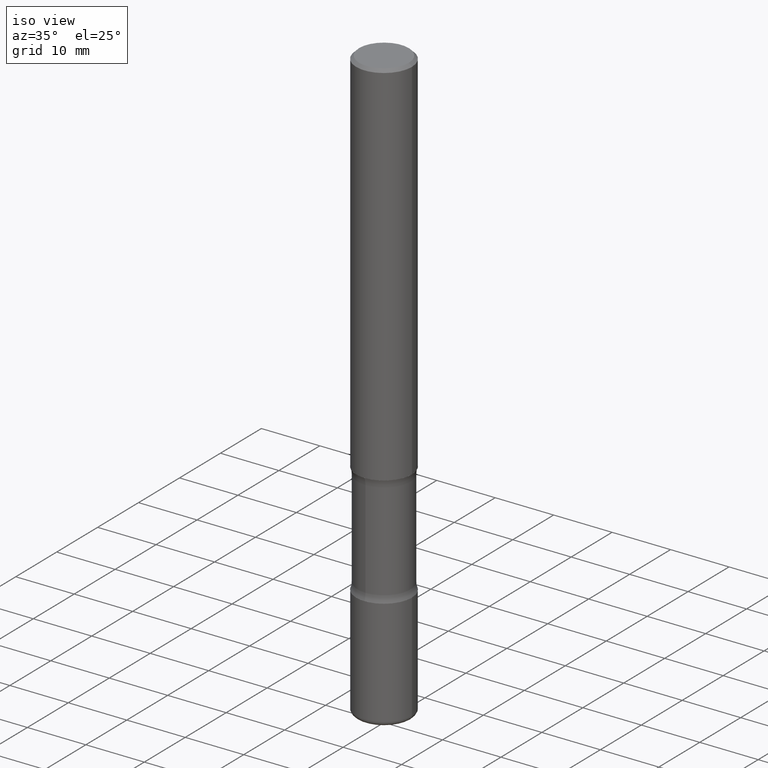
[diagram: clean part render]
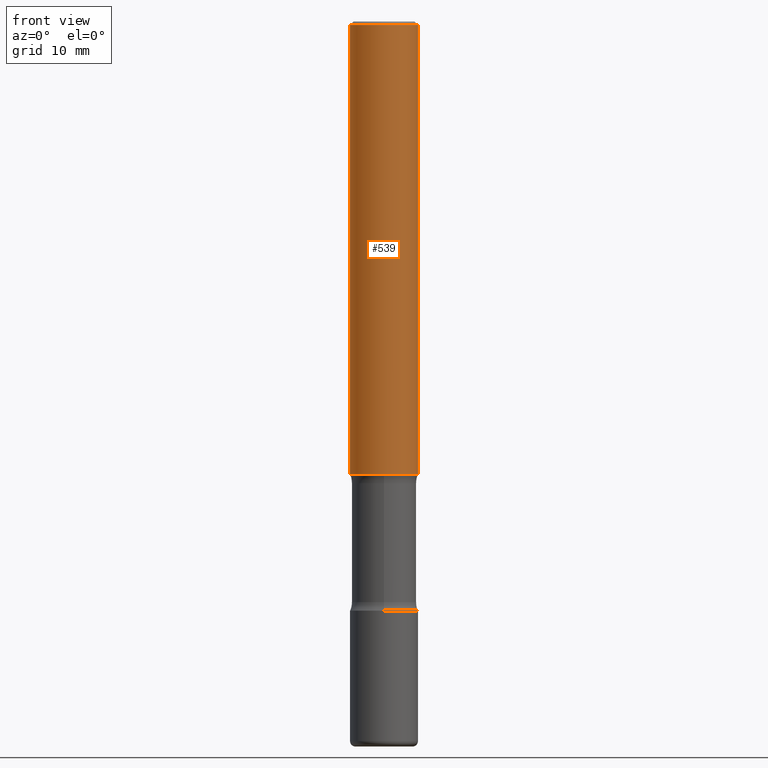
[diagram: tour spotlight — one face highlighted and labeled with its STEP entity id]
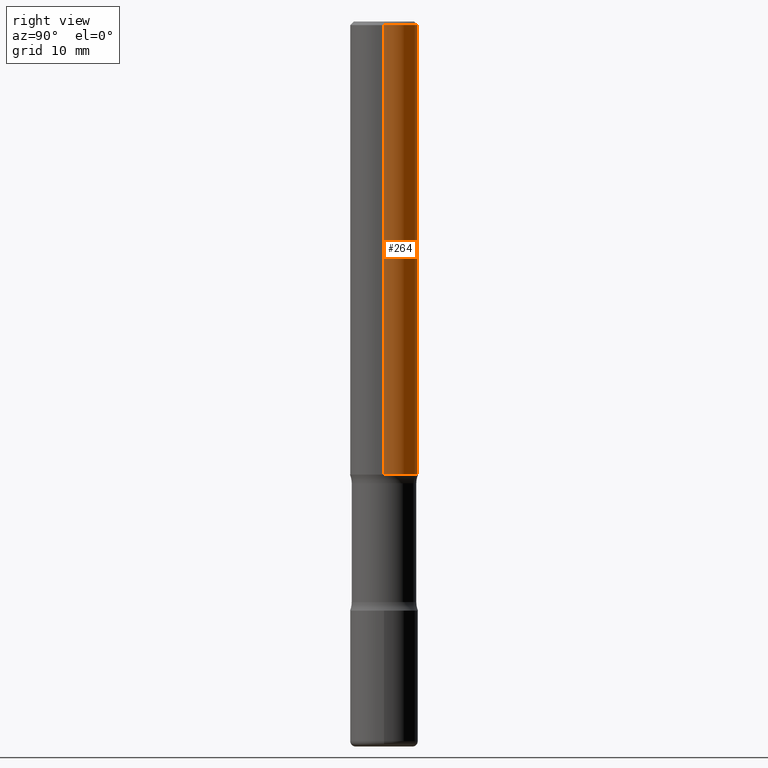
[diagram: tour spotlight — one face highlighted and labeled with its STEP entity id]
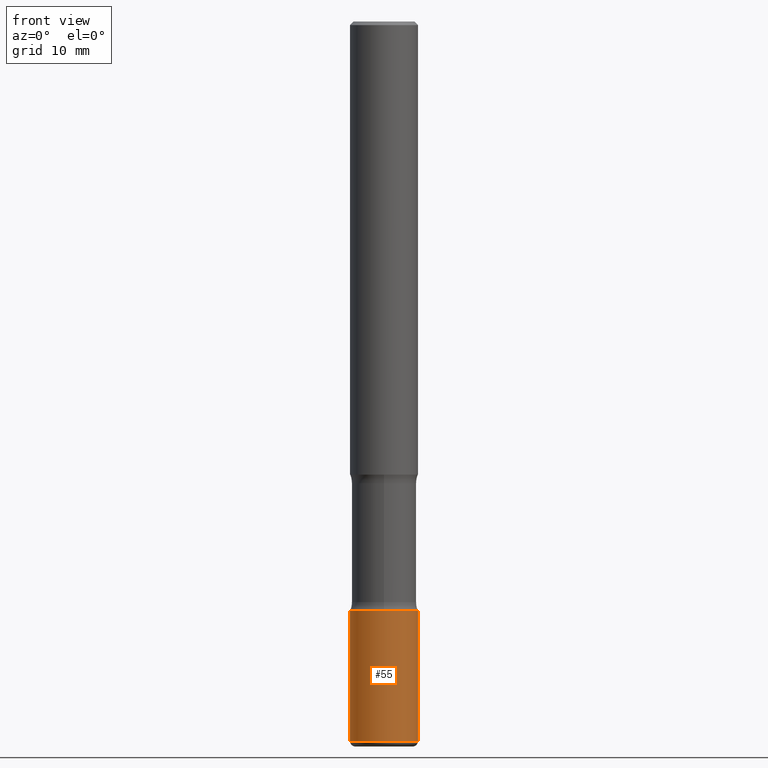
[diagram: tour spotlight — one face highlighted and labeled with its STEP entity id]
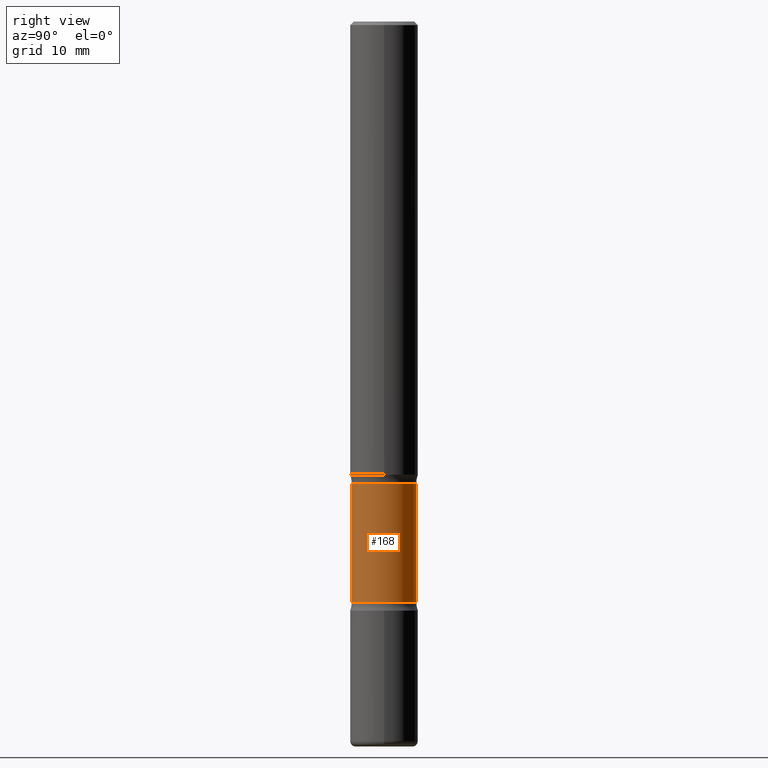
[diagram: tour spotlight — one face highlighted and labeled with its STEP entity id]
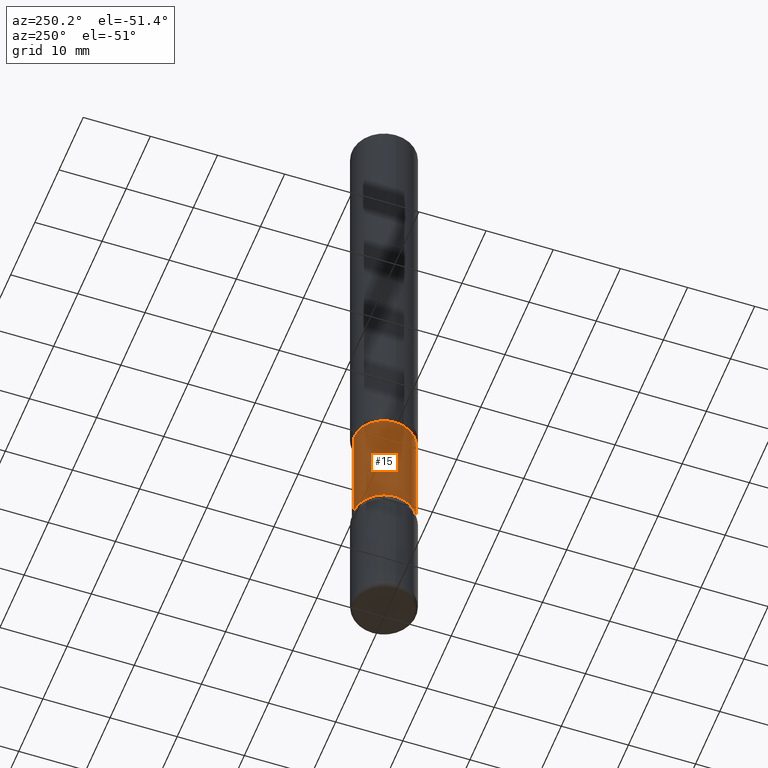
[diagram: tour spotlight — one face highlighted and labeled with its STEP entity id]
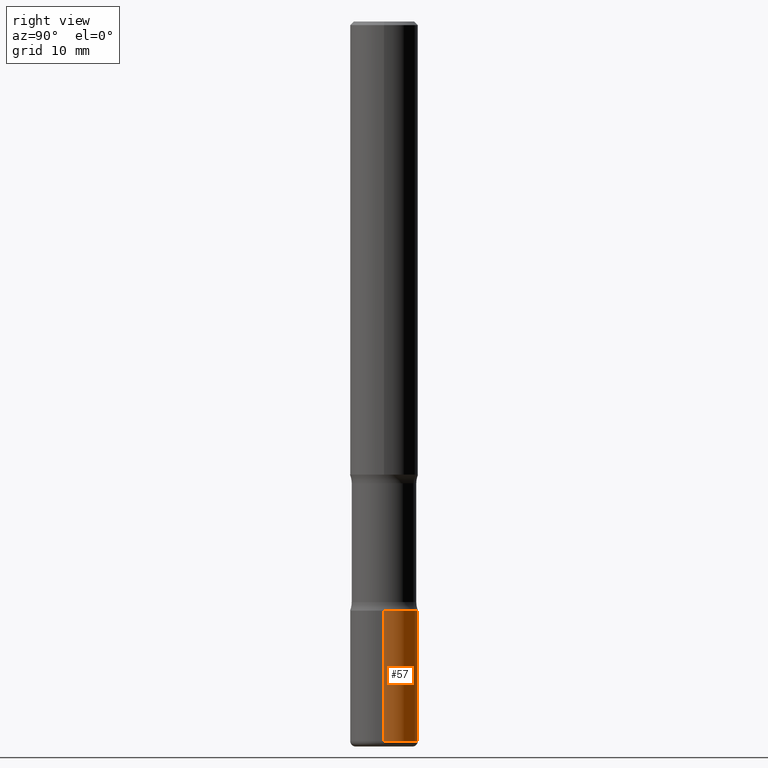
[diagram: tour spotlight — one face highlighted and labeled with its STEP entity id]
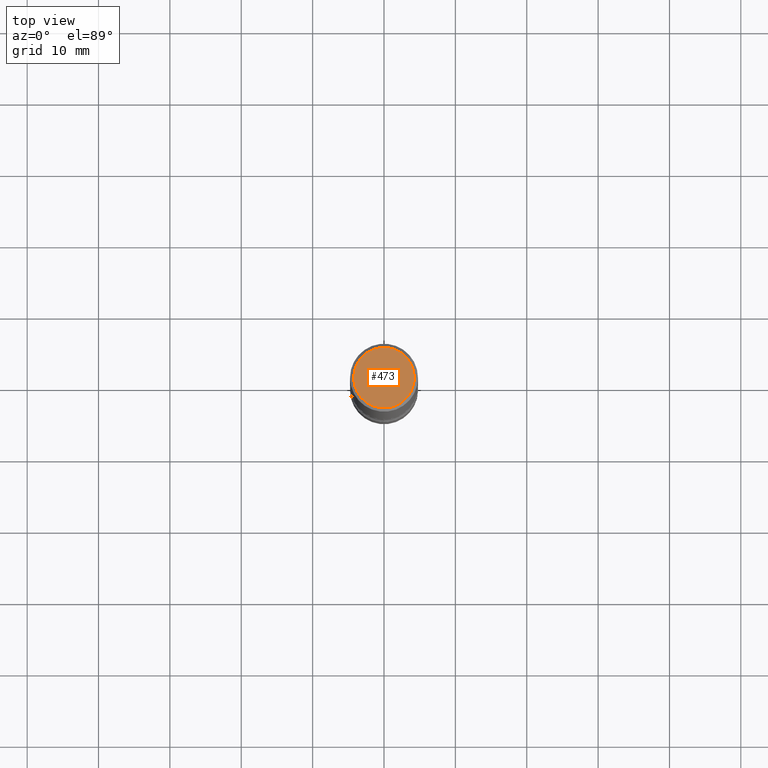
[diagram: tour spotlight — one face highlighted and labeled with its STEP entity id]
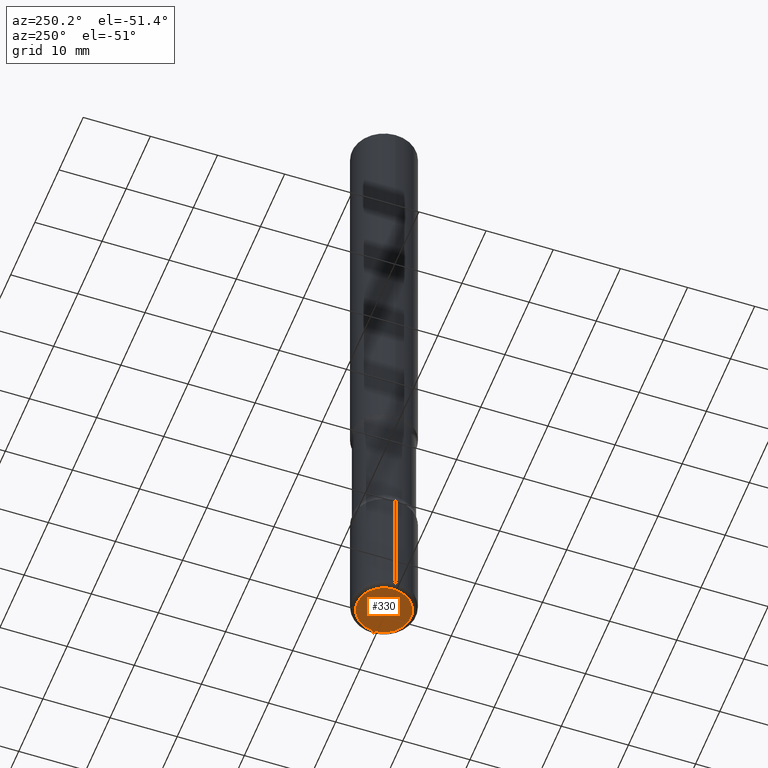
[diagram: tour spotlight — one face highlighted and labeled with its STEP entity id]
A machine part: a face-by-face anatomy tour. The part has 20 B-rep faces; the first image is the clean iso view, then the 8 largest visible faces are spotlighted one at a time (largest first), each with its STEP entity span.

Face 1 — front view, entity #539. In plain terms, the highlighted cylindrical surface (edge-blend (fillet) strip) has radius 4.7625 mm, axis along (-0, 0, 1).
Definition (entity closure, byte-faithful):
#29 = CYLINDRICAL_SURFACE ( 'NONE', #536, 0.1875000000000000278 ) ;
#44 = CARTESIAN_POINT ( 'NONE',  ( 0.1875000000000001110, -1.003800884917403995E-14, -2.500000000000000000 ) ) ;
#58 = VERTEX_POINT ( 'NONE', #398 ) ;
#59 = CARTESIAN_POINT ( 'NONE',  ( 4.890937612370289799E-31, -6.982962677686315028E-17, -0.02000000000000006981 ) ) ;
#75 = CARTESIAN_POINT ( 'NONE',  ( 0.000000000000000000, 0.000000000000000000, 0.000000000000000000 ) ) ;
#89 = AXIS2_PLACEMENT_3D ( 'NONE', #59, #235, #376 ) ;
#100 = VERTEX_POINT ( 'NONE', #251 ) ;
#155 = DIRECTION ( 'NONE',  ( 1.000000000000000000, -6.982962677686265922E-15, 4.876176775795935793E-29 ) ) ;
#166 = DIRECTION ( 'NONE',  ( -2.445468806185136877E-29, 3.491481338843145188E-15, 1.000000000000000000 ) ) ;
#171 = DIRECTION ( 'NONE',  ( -2.445468806185136597E-29, 3.491481338843145583E-15, 1.000000000000000000 ) ) ;
#193 = ORIENTED_EDGE ( 'NONE', *, *, #462, .F. ) ;
#203 = CARTESIAN_POINT ( 'NONE',  ( 6.113672015462842613E-29, -8.728703347107864943E-15, -2.500000000000000000 ) ) ;
#235 = DIRECTION ( 'NONE',  ( -2.445468806185136597E-29, 3.491481338843145583E-15, 1.000000000000000000 ) ) ;
#245 = VECTOR ( 'NONE', #390, 39.37007874015748143 ) ;
#249 = DIRECTION ( 'NONE',  ( -2.445468806185136597E-29, 3.491481338843145583E-15, 1.000000000000000000 ) ) ;
#251 = CARTESIAN_POINT ( 'NONE',  ( 0.1874999999999999167, -1.356173001359024677E-15, -0.02000000000000006981 ) ) ;
#328 = LINE ( 'NONE', #427, #245 ) ;
#347 = VERTEX_POINT ( 'NONE', #44 ) ;
#355 = AXIS2_PLACEMENT_3D ( 'NONE', #203, #249, #463 ) ;
#363 = ORIENTED_EDGE ( 'NONE', *, *, #374, .F. ) ;
#374 = EDGE_CURVE ( 'NONE', #558, #100, #525, .T. ) ;
#376 = DIRECTION ( 'NONE',  ( 1.000000000000000000, -6.982962677686265922E-15, 0.000000000000000000 ) ) ;
#379 = FACE_OUTER_BOUND ( 'NONE', #513, .T. ) ;
#381 = LINE ( 'NONE', #507, #413 ) ;
#382 = ORIENTED_EDGE ( 'NONE', *, *, #531, .T. ) ;
#390 = DIRECTION ( 'NONE',  ( -2.445468806185136877E-29, 3.491481338843145188E-15, 1.000000000000000000 ) ) ;
#398 = CARTESIAN_POINT ( 'NONE',  ( -0.1875000000000000833, -3.066998857392172722E-15, -2.500000000000000000 ) ) ;
#413 = VECTOR ( 'NONE', #166, 39.37007874015748143 ) ;
#427 = CARTESIAN_POINT ( 'NONE',  ( -0.1875000000000000278, 1.332267629550188046E-15, -9.223003294227947991E-30 ) ) ;
#462 = EDGE_CURVE ( 'NONE', #58, #558, #328, .T. ) ;
#463 = DIRECTION ( 'NONE',  ( 1.000000000000000000, -6.982962677686263555E-15, 0.000000000000000000 ) ) ;
#482 = CIRCLE ( 'NONE', #355, 0.1875000000000001110 ) ;
#488 = ORIENTED_EDGE ( 'NONE', *, *, #545, .T. ) ;
#507 = CARTESIAN_POINT ( 'NONE',  ( 0.1875000000000000278, -1.309305502066175008E-15, 9.142831454617381013E-30 ) ) ;
#513 = EDGE_LOOP ( 'NONE', ( #193, #382, #488, #363 ) ) ;
#525 = CIRCLE ( 'NONE', #89, 0.1874999999999999167 ) ;
#531 = EDGE_CURVE ( 'NONE', #58, #347, #482, .T. ) ;
#536 = AXIS2_PLACEMENT_3D ( 'NONE', #75, #171, #155 ) ;
#539 = ADVANCED_FACE ( 'NONE', ( #379 ), #29, .T. ) ;
#545 = EDGE_CURVE ( 'NONE', #347, #100, #381, .T. ) ;
#552 = CARTESIAN_POINT ( 'NONE',  ( -0.1874999999999999167, 1.239475875289311118E-15, -0.02000000000000006981 ) ) ;
#558 = VERTEX_POINT ( 'NONE', #552 ) ;

Face 2 — right view, entity #264. In plain terms, the highlighted cylindrical surface (edge-blend (fillet) strip) has radius 4.7625 mm, axis along (-0, 0, 1).
Definition (entity closure, byte-faithful):
#35 = ORIENTED_EDGE ( 'NONE', *, *, #462, .T. ) ;
#37 = EDGE_LOOP ( 'NONE', ( #76, #35, #144, #479 ) ) ;
#44 = CARTESIAN_POINT ( 'NONE',  ( 0.1875000000000001110, -1.003800884917403995E-14, -2.500000000000000000 ) ) ;
#54 = AXIS2_PLACEMENT_3D ( 'NONE', #393, #311, #516 ) ;
#58 = VERTEX_POINT ( 'NONE', #398 ) ;
#76 = ORIENTED_EDGE ( 'NONE', *, *, #377, .T. ) ;
#94 = FACE_OUTER_BOUND ( 'NONE', #37, .T. ) ;
#100 = VERTEX_POINT ( 'NONE', #251 ) ;
#102 = CIRCLE ( 'NONE', #228, 0.1874999999999999167 ) ;
#105 = EDGE_CURVE ( 'NONE', #100, #558, #102, .T. ) ;
#109 = DIRECTION ( 'NONE',  ( -2.445468806185136597E-29, 3.491481338843145583E-15, 1.000000000000000000 ) ) ;
#142 = CIRCLE ( 'NONE', #210, 0.1875000000000001110 ) ;
#144 = ORIENTED_EDGE ( 'NONE', *, *, #105, .F. ) ;
#166 = DIRECTION ( 'NONE',  ( -2.445468806185136877E-29, 3.491481338843145188E-15, 1.000000000000000000 ) ) ;
#169 = CYLINDRICAL_SURFACE ( 'NONE', #54, 0.1875000000000000278 ) ;
#209 = CARTESIAN_POINT ( 'NONE',  ( 4.890937612370289799E-31, -6.982962677686315028E-17, -0.02000000000000006981 ) ) ;
#210 = AXIS2_PLACEMENT_3D ( 'NONE', #369, #109, #538 ) ;
#228 = AXIS2_PLACEMENT_3D ( 'NONE', #209, #378, #387 ) ;
#245 = VECTOR ( 'NONE', #390, 39.37007874015748143 ) ;
#251 = CARTESIAN_POINT ( 'NONE',  ( 0.1874999999999999167, -1.356173001359024677E-15, -0.02000000000000006981 ) ) ;
#264 = ADVANCED_FACE ( 'NONE', ( #94 ), #169, .T. ) ;
#311 = DIRECTION ( 'NONE',  ( -2.445468806185136597E-29, 3.491481338843145583E-15, 1.000000000000000000 ) ) ;
#328 = LINE ( 'NONE', #427, #245 ) ;
#347 = VERTEX_POINT ( 'NONE', #44 ) ;
#369 = CARTESIAN_POINT ( 'NONE',  ( 6.113672015462842613E-29, -8.728703347107864943E-15, -2.500000000000000000 ) ) ;
#377 = EDGE_CURVE ( 'NONE', #347, #58, #142, .T. ) ;
#378 = DIRECTION ( 'NONE',  ( -2.445468806185136597E-29, 3.491481338843145583E-15, 1.000000000000000000 ) ) ;
#381 = LINE ( 'NONE', #507, #413 ) ;
#387 = DIRECTION ( 'NONE',  ( 1.000000000000000000, -6.982962677686265922E-15, 0.000000000000000000 ) ) ;
#390 = DIRECTION ( 'NONE',  ( -2.445468806185136877E-29, 3.491481338843145188E-15, 1.000000000000000000 ) ) ;
#393 = CARTESIAN_POINT ( 'NONE',  ( 0.000000000000000000, 0.000000000000000000, 0.000000000000000000 ) ) ;
#398 = CARTESIAN_POINT ( 'NONE',  ( -0.1875000000000000833, -3.066998857392172722E-15, -2.500000000000000000 ) ) ;
#413 = VECTOR ( 'NONE', #166, 39.37007874015748143 ) ;
#427 = CARTESIAN_POINT ( 'NONE',  ( -0.1875000000000000278, 1.332267629550188046E-15, -9.223003294227947991E-30 ) ) ;
#462 = EDGE_CURVE ( 'NONE', #58, #558, #328, .T. ) ;
#479 = ORIENTED_EDGE ( 'NONE', *, *, #545, .F. ) ;
#507 = CARTESIAN_POINT ( 'NONE',  ( 0.1875000000000000278, -1.309305502066175008E-15, 9.142831454617381013E-30 ) ) ;
#516 = DIRECTION ( 'NONE',  ( 1.000000000000000000, -6.982962677686265922E-15, 4.876176775795935793E-29 ) ) ;
#538 = DIRECTION ( 'NONE',  ( 1.000000000000000000, -6.982962677686263555E-15, 0.000000000000000000 ) ) ;
#545 = EDGE_CURVE ( 'NONE', #347, #100, #381, .T. ) ;
#552 = CARTESIAN_POINT ( 'NONE',  ( -0.1874999999999999167, 1.239475875289311118E-15, -0.02000000000000006981 ) ) ;
#558 = VERTEX_POINT ( 'NONE', #552 ) ;

Face 3 — front view, entity #55. In plain terms, the highlighted cylindrical surface (edge-blend (fillet) strip) has radius 4.7625 mm, axis along (-0, 0, 1).
Definition (entity closure, byte-faithful):
#3 = CARTESIAN_POINT ( 'NONE',  ( 0.000000000000000000, 0.000000000000000000, 0.000000000000000000 ) ) ;
#12 = VERTEX_POINT ( 'NONE', #361 ) ;
#19 = VECTOR ( 'NONE', #145, 39.37007874015748143 ) ;
#21 = ORIENTED_EDGE ( 'NONE', *, *, #490, .F. ) ;
#38 = DIRECTION ( 'NONE',  ( -2.445468806185136877E-29, 3.491481338843145188E-15, 1.000000000000000000 ) ) ;
#46 = FACE_OUTER_BOUND ( 'NONE', #483, .T. ) ;
#55 = ADVANCED_FACE ( 'NONE', ( #46 ), #287, .T. ) ;
#63 = ORIENTED_EDGE ( 'NONE', *, *, #384, .T. ) ;
#81 = DIRECTION ( 'NONE',  ( 1.000000000000000000, -6.982962677686269077E-15, 0.000000000000000000 ) ) ;
#111 = CARTESIAN_POINT ( 'NONE',  ( 0.1875000000000001110, -1.309305502066175797E-15, 9.142831454617385217E-30 ) ) ;
#140 = DIRECTION ( 'NONE',  ( 1.000000000000000000, -6.982962677686266711E-15, 4.876176775795935793E-29 ) ) ;
#145 = DIRECTION ( 'NONE',  ( -2.445468806185136877E-29, 3.491481338843145188E-15, 1.000000000000000000 ) ) ;
#148 = CIRCLE ( 'NONE', #540, 0.1875000000000001110 ) ;
#178 = EDGE_CURVE ( 'NONE', #443, #12, #148, .T. ) ;
#220 = EDGE_CURVE ( 'NONE', #443, #336, #556, .T. ) ;
#240 = LINE ( 'NONE', #111, #19 ) ;
#262 = AXIS2_PLACEMENT_3D ( 'NONE', #3, #269, #140 ) ;
#265 = CIRCLE ( 'NONE', #469, 0.1875000000000000833 ) ;
#269 = DIRECTION ( 'NONE',  ( -2.445468806185136597E-29, 3.491481338843145583E-15, 1.000000000000000000 ) ) ;
#271 = ORIENTED_EDGE ( 'NONE', *, *, #178, .T. ) ;
#287 = CYLINDRICAL_SURFACE ( 'NONE', #262, 0.1875000000000001110 ) ;
#336 = VERTEX_POINT ( 'NONE', #441 ) ;
#338 = CARTESIAN_POINT ( 'NONE',  ( 7.947773620101696182E-29, -1.134731435124022600E-14, -3.250000000000000444 ) ) ;
#341 = DIRECTION ( 'NONE',  ( -2.445468806185136597E-29, 3.491481338843145583E-15, 1.000000000000000000 ) ) ;
#344 = ORIENTED_EDGE ( 'NONE', *, *, #220, .F. ) ;
#361 = CARTESIAN_POINT ( 'NONE',  ( 0.1874999999999999722, -1.517048641727346712E-14, -3.970000000000000639 ) ) ;
#373 = CARTESIAN_POINT ( 'NONE',  ( 0.1875000000000000833, -1.265661985330640259E-14, -3.250000000000000444 ) ) ;
#384 = EDGE_CURVE ( 'NONE', #12, #453, #240, .T. ) ;
#423 = VECTOR ( 'NONE', #38, 39.37007874015748143 ) ;
#441 = CARTESIAN_POINT ( 'NONE',  ( -0.1875000000000000833, -1.127198000367356963E-14, -3.250000000000000444 ) ) ;
#443 = VERTEX_POINT ( 'NONE', #456 ) ;
#453 = VERTEX_POINT ( 'NONE', #373 ) ;
#456 = CARTESIAN_POINT ( 'NONE',  ( -0.1874999999999999722, -1.252891328565710269E-14, -3.970000000000000639 ) ) ;
#469 = AXIS2_PLACEMENT_3D ( 'NONE', #338, #511, #554 ) ;
#480 = CARTESIAN_POINT ( 'NONE',  ( -0.1875000000000001110, 1.332267629550188637E-15, -9.223003294227953596E-30 ) ) ;
#483 = EDGE_LOOP ( 'NONE', ( #344, #271, #63, #21 ) ) ;
#490 = EDGE_CURVE ( 'NONE', #336, #453, #265, .T. ) ;
#511 = DIRECTION ( 'NONE',  ( -2.445468806185136597E-29, 3.491481338843145583E-15, 1.000000000000000000 ) ) ;
#540 = AXIS2_PLACEMENT_3D ( 'NONE', #555, #341, #81 ) ;
#554 = DIRECTION ( 'NONE',  ( 1.000000000000000000, -6.982962677686269866E-15, 0.000000000000000000 ) ) ;
#555 = CARTESIAN_POINT ( 'NONE',  ( 9.708511160554993993E-29, -1.386118091520729054E-14, -3.970000000000000639 ) ) ;
#556 = LINE ( 'NONE', #480, #423 ) ;

Face 4 — right view, entity #168. In plain terms, the highlighted cylindrical surface (edge-blend (fillet) strip) has radius 4.5244 mm, axis along (0, -0, -1).
Definition (entity closure, byte-faithful):
#6 = ORIENTED_EDGE ( 'NONE', *, *, #419, .T. ) ;
#50 = FACE_OUTER_BOUND ( 'NONE', #226, .T. ) ;
#61 = AXIS2_PLACEMENT_3D ( 'NONE', #498, #454, #290 ) ;
#73 = CARTESIAN_POINT ( 'NONE',  ( 7.826246762236988201E-29, -1.118918372292999451E-14, -3.202504112020091664 ) ) ;
#74 = CARTESIAN_POINT ( 'NONE',  ( 1.243840226962927197E-15, 0.1781249999999909572, -2.547495887979909224 ) ) ;
#110 = CYLINDRICAL_SURFACE ( 'NONE', #468, 0.1781249999999999500 ) ;
#118 = CIRCLE ( 'NONE', #61, 0.1781249999999999500 ) ;
#124 = CARTESIAN_POINT ( 'NONE',  ( -1.222026205852954821E-15, -0.1781250000000138001, -3.999999999999999556 ) ) ;
#128 = DIRECTION ( 'NONE',  ( 6.982962677686266711E-15, 1.000000000000000000, -3.067338098149349089E-15 ) ) ;
#134 = VERTEX_POINT ( 'NONE', #74 ) ;
#164 = CARTESIAN_POINT ( 'NONE',  ( 9.866784870866931853E-29, -1.384432990936266734E-14, -4.000000000000000000 ) ) ;
#168 = ADVANCED_FACE ( 'NONE', ( #50 ), #110, .T. ) ;
#177 = DIRECTION ( 'NONE',  ( 2.558681667686983511E-29, -3.329354077496592524E-15, -1.000000000000000000 ) ) ;
#182 = ORIENTED_EDGE ( 'NONE', *, *, #196, .T. ) ;
#195 = CARTESIAN_POINT ( 'NONE',  ( 1.243840226962964471E-15, 0.1781249999999861278, -4.000000000000000888 ) ) ;
#196 = EDGE_CURVE ( 'NONE', #431, #541, #345, .T. ) ;
#226 = EDGE_LOOP ( 'NONE', ( #6, #182, #518, #404 ) ) ;
#290 = DIRECTION ( 'NONE',  ( 6.982962677686266711E-15, 1.000000000000000000, -3.067338098149349089E-15 ) ) ;
#299 = DIRECTION ( 'NONE',  ( 6.982962677686265133E-15, 1.000000000000000000, -3.067338098149349483E-15 ) ) ;
#302 = VECTOR ( 'NONE', #308, 39.37007874015748143 ) ;
#308 = DIRECTION ( 'NONE',  ( 2.558681667686983511E-29, -3.329354077496592524E-15, -1.000000000000000000 ) ) ;
#331 = CARTESIAN_POINT ( 'NONE',  ( -1.254184790217529307E-15, -0.1781250000000111355, -3.202504112020091220 ) ) ;
#333 = AXIS2_PLACEMENT_3D ( 'NONE', #73, #385, #299 ) ;
#340 = VERTEX_POINT ( 'NONE', #519 ) ;
#342 = LINE ( 'NONE', #195, #550 ) ;
#345 = LINE ( 'NONE', #124, #302 ) ;
#368 = EDGE_CURVE ( 'NONE', #134, #340, #342, .T. ) ;
#385 = DIRECTION ( 'NONE',  ( 2.558681667686983511E-29, -3.329354077496592524E-15, -1.000000000000000000 ) ) ;
#404 = ORIENTED_EDGE ( 'NONE', *, *, #368, .F. ) ;
#419 = EDGE_CURVE ( 'NONE', #134, #431, #118, .T. ) ;
#431 = VERTEX_POINT ( 'NONE', #500 ) ;
#451 = DIRECTION ( 'NONE',  ( 2.558681667686983511E-29, -3.329354077496592524E-15, -1.000000000000000000 ) ) ;
#454 = DIRECTION ( 'NONE',  ( 2.558681667686983511E-29, -3.329354077496592524E-15, -1.000000000000000000 ) ) ;
#468 = AXIS2_PLACEMENT_3D ( 'NONE', #164, #177, #128 ) ;
#498 = CARTESIAN_POINT ( 'NONE',  ( 6.150289227201164007E-29, -9.008429421428009851E-15, -2.547495887979908780 ) ) ;
#500 = CARTESIAN_POINT ( 'NONE',  ( -1.254184790217547253E-15, -0.1781250000000089706, -2.547495887979908336 ) ) ;
#502 = EDGE_CURVE ( 'NONE', #340, #541, #559, .T. ) ;
#518 = ORIENTED_EDGE ( 'NONE', *, *, #502, .F. ) ;
#519 = CARTESIAN_POINT ( 'NONE',  ( 1.243840226962943961E-15, 0.1781249999999887368, -3.202504112020092553 ) ) ;
#541 = VERTEX_POINT ( 'NONE', #331 ) ;
#550 = VECTOR ( 'NONE', #451, 39.37007874015748143 ) ;
#559 = CIRCLE ( 'NONE', #333, 0.1781249999999999223 ) ;

Face 5 — auxiliary view, entity #15. In plain terms, the highlighted cylindrical surface (edge-blend (fillet) strip) has radius 4.5244 mm, axis along (0, -0, -1).
Definition (entity closure, byte-faithful):
#15 = ADVANCED_FACE ( 'NONE', ( #103 ), #314, .T. ) ;
#36 = CARTESIAN_POINT ( 'NONE',  ( 6.150289227201164007E-29, -9.008429421428009851E-15, -2.547495887979908780 ) ) ;
#74 = CARTESIAN_POINT ( 'NONE',  ( 1.243840226962927197E-15, 0.1781249999999909572, -2.547495887979909224 ) ) ;
#80 = EDGE_LOOP ( 'NONE', ( #219, #386, #439, #510 ) ) ;
#83 = CARTESIAN_POINT ( 'NONE',  ( 7.826246762236988201E-29, -1.118918372292999451E-14, -3.202504112020091664 ) ) ;
#103 = FACE_OUTER_BOUND ( 'NONE', #80, .T. ) ;
#124 = CARTESIAN_POINT ( 'NONE',  ( -1.222026205852954821E-15, -0.1781250000000138001, -3.999999999999999556 ) ) ;
#134 = VERTEX_POINT ( 'NONE', #74 ) ;
#174 = DIRECTION ( 'NONE',  ( 6.982962677686266711E-15, 1.000000000000000000, -3.067338098149349089E-15 ) ) ;
#195 = CARTESIAN_POINT ( 'NONE',  ( 1.243840226962964471E-15, 0.1781249999999861278, -4.000000000000000888 ) ) ;
#196 = EDGE_CURVE ( 'NONE', #431, #541, #345, .T. ) ;
#219 = ORIENTED_EDGE ( 'NONE', *, *, #196, .F. ) ;
#239 = AXIS2_PLACEMENT_3D ( 'NONE', #36, #306, #174 ) ;
#277 = DIRECTION ( 'NONE',  ( 2.558681667686983511E-29, -3.329354077496592524E-15, -1.000000000000000000 ) ) ;
#293 = CIRCLE ( 'NONE', #239, 0.1781249999999999500 ) ;
#301 = EDGE_CURVE ( 'NONE', #431, #134, #293, .T. ) ;
#302 = VECTOR ( 'NONE', #308, 39.37007874015748143 ) ;
#306 = DIRECTION ( 'NONE',  ( 2.558681667686983511E-29, -3.329354077496592524E-15, -1.000000000000000000 ) ) ;
#308 = DIRECTION ( 'NONE',  ( 2.558681667686983511E-29, -3.329354077496592524E-15, -1.000000000000000000 ) ) ;
#314 = CYLINDRICAL_SURFACE ( 'NONE', #523, 0.1781249999999999500 ) ;
#326 = AXIS2_PLACEMENT_3D ( 'NONE', #83, #474, #399 ) ;
#331 = CARTESIAN_POINT ( 'NONE',  ( -1.254184790217529307E-15, -0.1781250000000111355, -3.202504112020091220 ) ) ;
#339 = EDGE_CURVE ( 'NONE', #541, #340, #452, .T. ) ;
#340 = VERTEX_POINT ( 'NONE', #519 ) ;
#342 = LINE ( 'NONE', #195, #550 ) ;
#345 = LINE ( 'NONE', #124, #302 ) ;
#368 = EDGE_CURVE ( 'NONE', #134, #340, #342, .T. ) ;
#386 = ORIENTED_EDGE ( 'NONE', *, *, #301, .T. ) ;
#399 = DIRECTION ( 'NONE',  ( 6.982962677686265133E-15, 1.000000000000000000, -3.067338098149349483E-15 ) ) ;
#431 = VERTEX_POINT ( 'NONE', #500 ) ;
#439 = ORIENTED_EDGE ( 'NONE', *, *, #368, .T. ) ;
#440 = DIRECTION ( 'NONE',  ( 6.982962677686266711E-15, 1.000000000000000000, -3.067338098149349089E-15 ) ) ;
#451 = DIRECTION ( 'NONE',  ( 2.558681667686983511E-29, -3.329354077496592524E-15, -1.000000000000000000 ) ) ;
#452 = CIRCLE ( 'NONE', #326, 0.1781249999999999223 ) ;
#474 = DIRECTION ( 'NONE',  ( 2.558681667686983511E-29, -3.329354077496592524E-15, -1.000000000000000000 ) ) ;
#486 = CARTESIAN_POINT ( 'NONE',  ( 9.866784870866931853E-29, -1.384432990936266734E-14, -4.000000000000000000 ) ) ;
#500 = CARTESIAN_POINT ( 'NONE',  ( -1.254184790217547253E-15, -0.1781250000000089706, -2.547495887979908336 ) ) ;
#510 = ORIENTED_EDGE ( 'NONE', *, *, #339, .F. ) ;
#519 = CARTESIAN_POINT ( 'NONE',  ( 1.243840226962943961E-15, 0.1781249999999887368, -3.202504112020092553 ) ) ;
#523 = AXIS2_PLACEMENT_3D ( 'NONE', #486, #277, #440 ) ;
#541 = VERTEX_POINT ( 'NONE', #331 ) ;
#550 = VECTOR ( 'NONE', #451, 39.37007874015748143 ) ;

Face 6 — right view, entity #57. In plain terms, the highlighted cylindrical surface (edge-blend (fillet) strip) has radius 4.7625 mm, axis along (-0, 0, 1).
Definition (entity closure, byte-faithful):
#9 = AXIS2_PLACEMENT_3D ( 'NONE', #295, #246, #214 ) ;
#12 = VERTEX_POINT ( 'NONE', #361 ) ;
#16 = EDGE_CURVE ( 'NONE', #12, #443, #362, .T. ) ;
#19 = VECTOR ( 'NONE', #145, 39.37007874015748143 ) ;
#31 = CIRCLE ( 'NONE', #9, 0.1875000000000000833 ) ;
#38 = DIRECTION ( 'NONE',  ( -2.445468806185136877E-29, 3.491481338843145188E-15, 1.000000000000000000 ) ) ;
#49 = CYLINDRICAL_SURFACE ( 'NONE', #273, 0.1875000000000001110 ) ;
#57 = ADVANCED_FACE ( 'NONE', ( #179 ), #49, .T. ) ;
#85 = ORIENTED_EDGE ( 'NONE', *, *, #16, .T. ) ;
#92 = DIRECTION ( 'NONE',  ( -2.445468806185136597E-29, 3.491481338843145583E-15, 1.000000000000000000 ) ) ;
#108 = CARTESIAN_POINT ( 'NONE',  ( 9.708511160554993993E-29, -1.386118091520729054E-14, -3.970000000000000639 ) ) ;
#111 = CARTESIAN_POINT ( 'NONE',  ( 0.1875000000000001110, -1.309305502066175797E-15, 9.142831454617385217E-30 ) ) ;
#145 = DIRECTION ( 'NONE',  ( -2.445468806185136877E-29, 3.491481338843145188E-15, 1.000000000000000000 ) ) ;
#176 = ORIENTED_EDGE ( 'NONE', *, *, #220, .T. ) ;
#179 = FACE_OUTER_BOUND ( 'NONE', #426, .T. ) ;
#214 = DIRECTION ( 'NONE',  ( 1.000000000000000000, -6.982962677686269866E-15, 0.000000000000000000 ) ) ;
#220 = EDGE_CURVE ( 'NONE', #443, #336, #556, .T. ) ;
#240 = LINE ( 'NONE', #111, #19 ) ;
#246 = DIRECTION ( 'NONE',  ( -2.445468806185136597E-29, 3.491481338843145583E-15, 1.000000000000000000 ) ) ;
#273 = AXIS2_PLACEMENT_3D ( 'NONE', #351, #320, #409 ) ;
#295 = CARTESIAN_POINT ( 'NONE',  ( 7.947773620101696182E-29, -1.134731435124022600E-14, -3.250000000000000444 ) ) ;
#320 = DIRECTION ( 'NONE',  ( -2.445468806185136597E-29, 3.491481338843145583E-15, 1.000000000000000000 ) ) ;
#336 = VERTEX_POINT ( 'NONE', #441 ) ;
#351 = CARTESIAN_POINT ( 'NONE',  ( 0.000000000000000000, 0.000000000000000000, 0.000000000000000000 ) ) ;
#358 = ORIENTED_EDGE ( 'NONE', *, *, #384, .F. ) ;
#361 = CARTESIAN_POINT ( 'NONE',  ( 0.1874999999999999722, -1.517048641727346712E-14, -3.970000000000000639 ) ) ;
#362 = CIRCLE ( 'NONE', #489, 0.1875000000000001110 ) ;
#373 = CARTESIAN_POINT ( 'NONE',  ( 0.1875000000000000833, -1.265661985330640259E-14, -3.250000000000000444 ) ) ;
#384 = EDGE_CURVE ( 'NONE', #12, #453, #240, .T. ) ;
#409 = DIRECTION ( 'NONE',  ( 1.000000000000000000, -6.982962677686266711E-15, 4.876176775795935793E-29 ) ) ;
#423 = VECTOR ( 'NONE', #38, 39.37007874015748143 ) ;
#426 = EDGE_LOOP ( 'NONE', ( #85, #176, #553, #358 ) ) ;
#441 = CARTESIAN_POINT ( 'NONE',  ( -0.1875000000000000833, -1.127198000367356963E-14, -3.250000000000000444 ) ) ;
#443 = VERTEX_POINT ( 'NONE', #456 ) ;
#448 = DIRECTION ( 'NONE',  ( 1.000000000000000000, -6.982962677686269077E-15, 0.000000000000000000 ) ) ;
#453 = VERTEX_POINT ( 'NONE', #373 ) ;
#456 = CARTESIAN_POINT ( 'NONE',  ( -0.1874999999999999722, -1.252891328565710269E-14, -3.970000000000000639 ) ) ;
#480 = CARTESIAN_POINT ( 'NONE',  ( -0.1875000000000001110, 1.332267629550188637E-15, -9.223003294227953596E-30 ) ) ;
#489 = AXIS2_PLACEMENT_3D ( 'NONE', #108, #92, #448 ) ;
#521 = EDGE_CURVE ( 'NONE', #453, #336, #31, .T. ) ;
#553 = ORIENTED_EDGE ( 'NONE', *, *, #521, .F. ) ;
#556 = LINE ( 'NONE', #480, #423 ) ;

Face 7 — top view, entity #473. In plain terms, the highlighted planar face has unit normal (0, -0, -1).
Definition (entity closure, byte-faithful):
#2 = EDGE_CURVE ( 'NONE', #96, #8, #497, .T. ) ;
#8 = VERTEX_POINT ( 'NONE', #188 ) ;
#34 = CARTESIAN_POINT ( 'NONE',  ( 1.169646248512448806E-15, 0.1674999999999998990, -5.848231242562264739E-16 ) ) ;
#78 = DIRECTION ( 'NONE',  ( 2.438088387897960049E-29, -3.491481338843145188E-15, -1.000000000000000000 ) ) ;
#91 = EDGE_LOOP ( 'NONE', ( #450, #197 ) ) ;
#96 = VERTEX_POINT ( 'NONE', #401 ) ;
#126 = CARTESIAN_POINT ( 'NONE',  ( 0.000000000000000000, 0.000000000000000000, 0.000000000000000000 ) ) ;
#188 = CARTESIAN_POINT ( 'NONE',  ( 0.1674999999999998990, -1.252653207992877500E-15, 8.469775550109235181E-30 ) ) ;
#197 = ORIENTED_EDGE ( 'NONE', *, *, #281, .T. ) ;
#208 = AXIS2_PLACEMENT_3D ( 'NONE', #435, #318, #484 ) ;
#211 = AXIS2_PLACEMENT_3D ( 'NONE', #126, #437, #429 ) ;
#281 = EDGE_CURVE ( 'NONE', #8, #96, #394, .T. ) ;
#318 = DIRECTION ( 'NONE',  ( -2.445468806185136597E-29, 3.491481338843145583E-15, 1.000000000000000000 ) ) ;
#394 = CIRCLE ( 'NONE', #211, 0.1674999999999998990 ) ;
#401 = CARTESIAN_POINT ( 'NONE',  ( -0.1674999999999998990, 1.204561061900880061E-15, -8.301862719484106184E-30 ) ) ;
#425 = FACE_OUTER_BOUND ( 'NONE', #91, .T. ) ;
#429 = DIRECTION ( 'NONE',  ( 1.000000000000000000, -6.982962677686265922E-15, 4.876176775795935793E-29 ) ) ;
#435 = CARTESIAN_POINT ( 'NONE',  ( 0.000000000000000000, 0.000000000000000000, 0.000000000000000000 ) ) ;
#437 = DIRECTION ( 'NONE',  ( -2.445468806185136597E-29, 3.491481338843145583E-15, 1.000000000000000000 ) ) ;
#450 = ORIENTED_EDGE ( 'NONE', *, *, #2, .T. ) ;
#473 = ADVANCED_FACE ( 'NONE', ( #425 ), #546, .F. ) ;
#484 = DIRECTION ( 'NONE',  ( 1.000000000000000000, -6.982962677686265922E-15, 4.876176775795935793E-29 ) ) ;
#497 = CIRCLE ( 'NONE', #208, 0.1674999999999998990 ) ;
#505 = AXIS2_PLACEMENT_3D ( 'NONE', #34, #78, #548 ) ;
#546 = PLANE ( 'NONE',  #505 ) ;
#548 = DIRECTION ( 'NONE',  ( -1.000000000000000000, 6.982962677686265922E-15, -4.876176775795935793E-29 ) ) ;

Face 8 — auxiliary view, entity #330. In plain terms, the highlighted planar face has unit normal (0, -0, -1).
Definition (entity closure, byte-faithful):
#25 = CIRCLE ( 'NONE', #71, 0.1575000000000001676 ) ;
#71 = AXIS2_PLACEMENT_3D ( 'NONE', #325, #364, #191 ) ;
#115 = CARTESIAN_POINT ( 'NONE',  ( 9.781875224740546387E-29, -1.396592535537258233E-14, -4.000000000000000000 ) ) ;
#121 = ORIENTED_EDGE ( 'NONE', *, *, #408, .F. ) ;
#123 = AXIS2_PLACEMENT_3D ( 'NONE', #115, #255, #417 ) ;
#191 = DIRECTION ( 'NONE',  ( 1.000000000000000000, -6.982962677686267499E-15, 0.000000000000000000 ) ) ;
#207 = VERTEX_POINT ( 'NONE', #532 ) ;
#215 = CARTESIAN_POINT ( 'NONE',  ( 0.1575000000000001676, -1.506574197710817060E-14, -4.000000000000000000 ) ) ;
#255 = DIRECTION ( 'NONE',  ( -2.445468806185136597E-29, 3.491481338843145583E-15, 1.000000000000000000 ) ) ;
#256 = EDGE_LOOP ( 'NONE', ( #406, #121 ) ) ;
#257 = PLANE ( 'NONE',  #447 ) ;
#270 = DIRECTION ( 'NONE',  ( -1.000000000000000000, 6.982962677686265922E-15, -4.876176775795935793E-29 ) ) ;
#284 = CIRCLE ( 'NONE', #123, 0.1575000000000001676 ) ;
#325 = CARTESIAN_POINT ( 'NONE',  ( 9.781875224740546387E-29, -1.396592535537258233E-14, -4.000000000000000000 ) ) ;
#330 = ADVANCED_FACE ( 'NONE', ( #471 ), #257, .T. ) ;
#348 = DIRECTION ( 'NONE',  ( 2.438088387897960049E-29, -3.491481338843145188E-15, -1.000000000000000000 ) ) ;
#364 = DIRECTION ( 'NONE',  ( -2.445468806185136597E-29, 3.491481338843145583E-15, 1.000000000000000000 ) ) ;
#406 = ORIENTED_EDGE ( 'NONE', *, *, #464, .F. ) ;
#408 = EDGE_CURVE ( 'NONE', #207, #529, #25, .T. ) ;
#417 = DIRECTION ( 'NONE',  ( 1.000000000000000000, -6.982962677686267499E-15, 0.000000000000000000 ) ) ;
#432 = CARTESIAN_POINT ( 'NONE',  ( 9.781875224740546387E-29, -1.396592535537258233E-14, -4.000000000000000000 ) ) ;
#447 = AXIS2_PLACEMENT_3D ( 'NONE', #432, #348, #270 ) ;
#464 = EDGE_CURVE ( 'NONE', #529, #207, #284, .T. ) ;
#471 = FACE_OUTER_BOUND ( 'NONE', #256, .T. ) ;
#529 = VERTEX_POINT ( 'NONE', #215 ) ;
#532 = CARTESIAN_POINT ( 'NONE',  ( -0.1575000000000001676, -1.268786691610376371E-14, -4.000000000000000000 ) ) ;